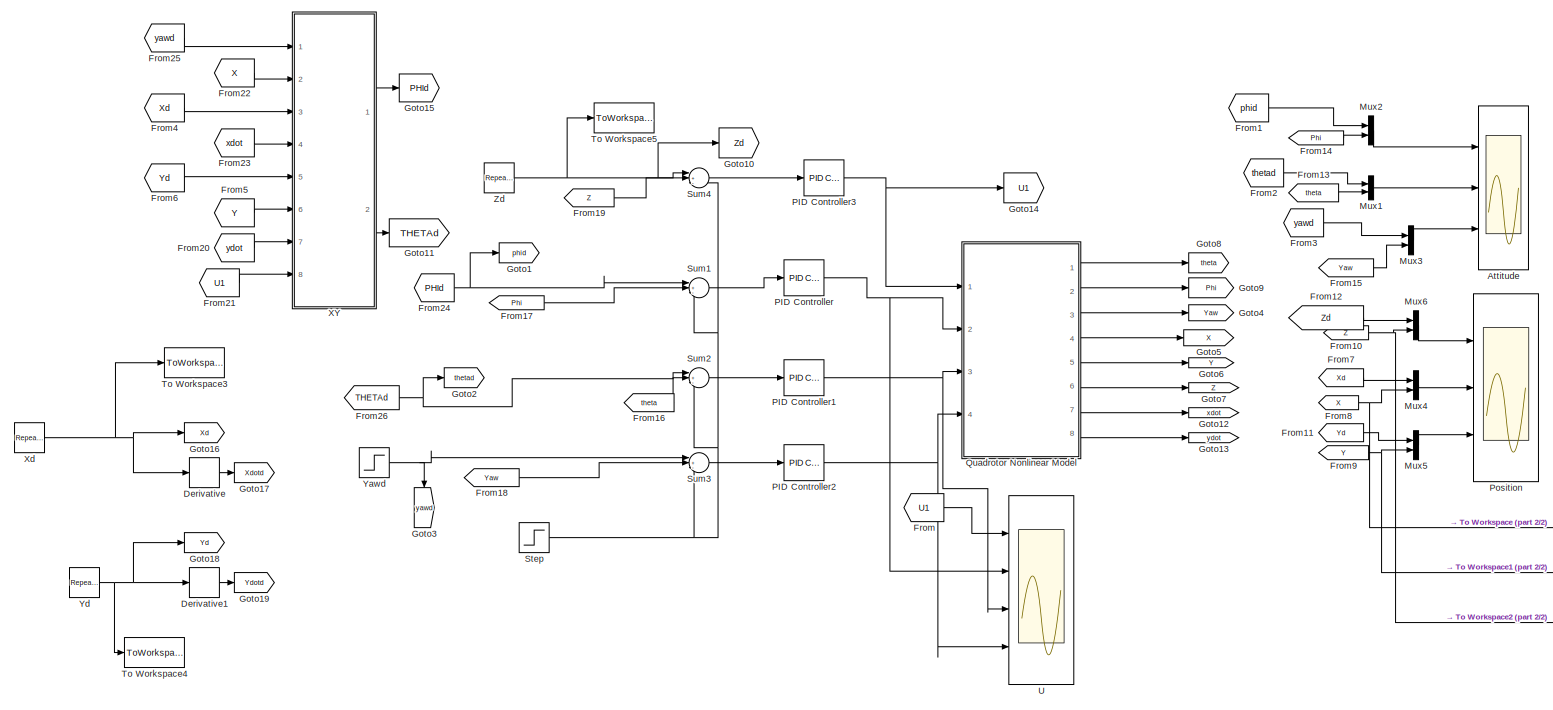
[diagram: root canvas - part 1/2, most of the canvas]
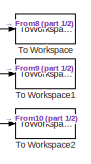
[diagram: root canvas - part 2/2, bottom right region]
MODEL slx_5202ed78c11b
KIND model
CONFIG AbsTol = auto
CONFIG FixedStep = 0.01
CONFIG MaxStep = auto
CONFIG MinStep = auto
CONFIG RelTol = 1e-3
CONFIG SampleTimeConstraint = Unconstrained
CONFIG Solver = ode4
CONFIG SolverMode = Auto
CONFIG SolverName = ode4
CONFIG StartTime = 0.0
CONFIG StopTime = 14
BLOCK [Scope] Attitude
  NumInputPorts = 3
  Ports = [3]
  ScopeSpecificationString = Simulink.scopes.TimeScopeBlockCfg('CurrentConfiguration', extmgr.ConfigurationSet(extmgr.Configuration('Core','General UI',true),extmgr.Configuration('Core','Source UI',true),extmgr.Configuration('Sources','WiredSimulink',true),extmgr.Configuration('Visuals','Time Domain',true,'SerializedDisplays',{struct('MinYLimReal','-1.9635','MaxYLimReal','1.9635','YLabelReal','','MinYLimMag','0.00000','MaxYLi...<+2755ch>
BLOCK [Derivative] Derivative
BLOCK [Derivative] Derivative1
BLOCK [From] From
  GotoTag = U1
BLOCK [From] From1
  GotoTag = phid
BLOCK [From] From10
  GotoTag = Z
BLOCK [From] From11
  GotoTag = Yd
BLOCK [From] From12
  GotoTag = Zd
BLOCK [From] From13
  GotoTag = theta
BLOCK [From] From14
  GotoTag = Phi
BLOCK [From] From15
  GotoTag = Yaw
BLOCK [From] From16
  GotoTag = theta
BLOCK [From] From17
  GotoTag = Phi
BLOCK [From] From18
  GotoTag = Yaw
BLOCK [From] From19
  GotoTag = Z
BLOCK [From] From2
  GotoTag = thetad
BLOCK [From] From20
  GotoTag = ydot
BLOCK [From] From21
  GotoTag = U1
BLOCK [From] From22
  GotoTag = X
BLOCK [From] From23
  GotoTag = xdot
BLOCK [From] From24
  GotoTag = PHId
  TagVisibility = global
BLOCK [From] From25
  GotoTag = yawd
BLOCK [From] From26
  GotoTag = THETAd
  TagVisibility = global
BLOCK [From] From3
  GotoTag = yawd
BLOCK [From] From4
  GotoTag = Xd
BLOCK [From] From5
  GotoTag = Y
BLOCK [From] From6
  GotoTag = Yd
BLOCK [From] From7
  GotoTag = Xd
BLOCK [From] From8
  GotoTag = X
BLOCK [From] From9
  GotoTag = Y
BLOCK [Goto] Goto1
  GotoTag = phid
BLOCK [Goto] Goto10
  GotoTag = Zd
BLOCK [Goto] Goto11
  GotoTag = THETAd
  TagVisibility = global
BLOCK [Goto] Goto12
  GotoTag = xdot
BLOCK [Goto] Goto13
  GotoTag = ydot
BLOCK [Goto] Goto14
  GotoTag = U1
BLOCK [Goto] Goto15
  GotoTag = PHId
  TagVisibility = global
BLOCK [Goto] Goto16
  GotoTag = Xd
BLOCK [Goto] Goto17
  GotoTag = Xdotd
BLOCK [Goto] Goto18
  GotoTag = Yd
BLOCK [Goto] Goto19
  GotoTag = Ydotd
BLOCK [Goto] Goto2
  GotoTag = thetad
BLOCK [Goto] Goto3
  GotoTag = yawd
BLOCK [Goto] Goto4
  GotoTag = Yaw
BLOCK [Goto] Goto5
  GotoTag = X
BLOCK [Goto] Goto6
  GotoTag = Y
BLOCK [Goto] Goto7
  GotoTag = Z
BLOCK [Goto] Goto8
  GotoTag = theta
BLOCK [Goto] Goto9
  GotoTag = Phi
BLOCK [Mux] Mux1
  DisplayOption = bar
  Inputs = 2
  Ports = [2, 1]
BLOCK [Mux] Mux2
  DisplayOption = bar
  Inputs = 2
  Ports = [2, 1]
BLOCK [Mux] Mux3
  DisplayOption = bar
  Inputs = 2
  Ports = [2, 1]
BLOCK [Mux] Mux4
  DisplayOption = bar
  Inputs = 2
  Ports = [2, 1]
BLOCK [Mux] Mux5
  DisplayOption = bar
  Inputs = 2
  Ports = [2, 1]
BLOCK [Mux] Mux6
  DisplayOption = bar
  Inputs = 2
  Ports = [2, 1]
BLOCK [Reference] PID Controller  REF=simulink/Continuous/PID Controller
  Ports = [1, 1]
  SourceBlock = simulink/Continuous/PID Controller
  SourceType = PID 1dof
BLOCK [Reference] PID Controller1  REF=simulink/Continuous/PID Controller
  Ports = [1, 1]
  SourceBlock = simulink/Continuous/PID Controller
  SourceType = PID 1dof
BLOCK [Reference] PID Controller2  REF=simulink/Continuous/PID Controller
  Ports = [1, 1]
  SourceBlock = simulink/Continuous/PID Controller
  SourceType = PID 1dof
BLOCK [Reference] PID Controller3  REF=simulink/Continuous/PID Controller
  Ports = [1, 1]
  SourceBlock = simulink/Continuous/PID Controller
  SourceType = PID 1dof
BLOCK [Scope] Position
  NumInputPorts = 3
  Ports = [3]
  ScopeSpecificationString = Simulink.scopes.TimeScopeBlockCfg('CurrentConfiguration', extmgr.ConfigurationSet(extmgr.Configuration('Core','General UI',true),extmgr.Configuration('Core','Source UI',true),extmgr.Configuration('Sources','WiredSimulink',true,'DataLoggingVariableName','ScopeData1'),extmgr.Configuration('Visuals','Time Domain',true,'SerializedDisplays',{struct('MinYLimReal','0.30038','MaxYLimReal','6.25834','YLabe...<+2876ch>
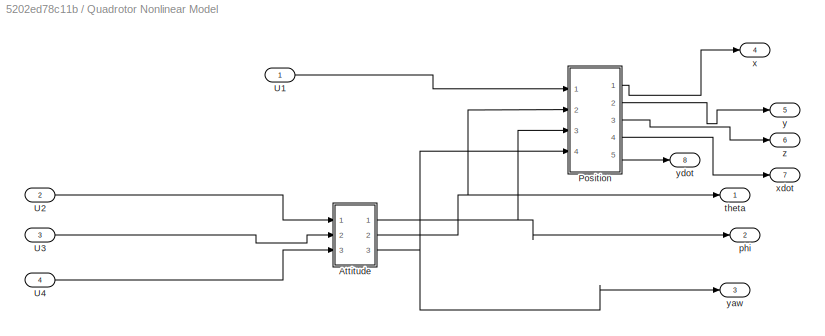
BLOCK [SubSystem] Quadrotor Nonlinear Model
  Ports = [4, 8]
  RequestExecContextInheritance = off
  Variant = off
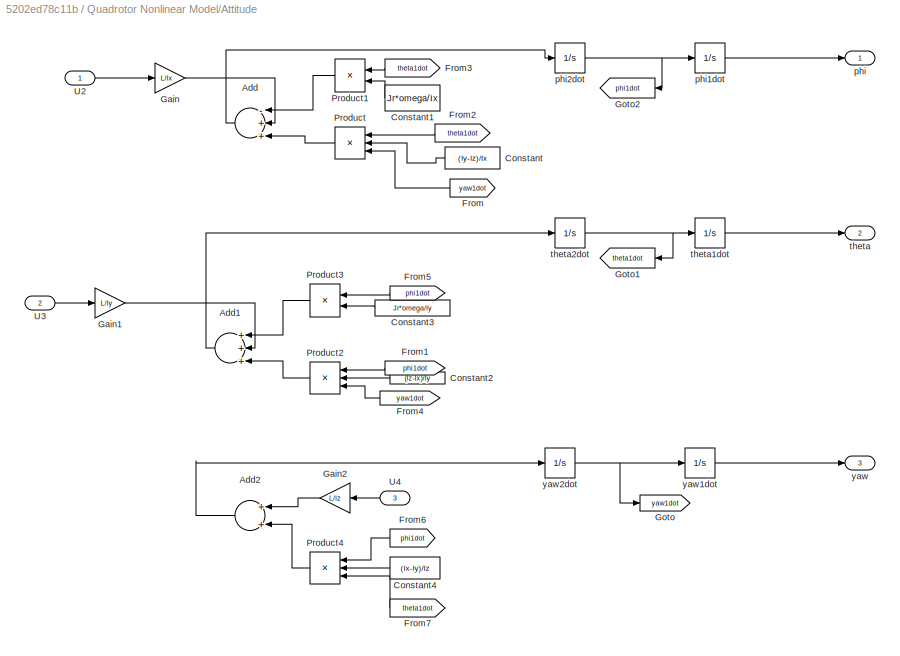
BLOCK [SubSystem] Quadrotor Nonlinear Model/Attitude 
  Ports = [3, 3]
  RequestExecContextInheritance = off
  Variant = off
BLOCK [Sum] Quadrotor Nonlinear Model/Attitude /Add
  InputSameDT = off
  Inputs = -++
  OutDataTypeStr = Inherit: Inherit via internal rule
  Ports = [3, 1]
  SaturateOnIntegerOverflow = off
BLOCK [Sum] Quadrotor Nonlinear Model/Attitude /Add1
  InputSameDT = off
  Inputs = +++
  OutDataTypeStr = Inherit: Inherit via internal rule
  Ports = [3, 1]
  SaturateOnIntegerOverflow = off
BLOCK [Sum] Quadrotor Nonlinear Model/Attitude /Add2
  InputSameDT = off
  OutDataTypeStr = Inherit: Inherit via internal rule
  Ports = [2, 1]
  SaturateOnIntegerOverflow = off
BLOCK [Constant] Quadrotor Nonlinear Model/Attitude /Constant
  Value = (Iy-Iz)/Ix
BLOCK [Constant] Quadrotor Nonlinear Model/Attitude /Constant1
  Value = Jr*omega/Ix
BLOCK [Constant] Quadrotor Nonlinear Model/Attitude /Constant2
  Value = (Iz-Ix)/Iy
BLOCK [Constant] Quadrotor Nonlinear Model/Attitude /Constant3
  Value = Jr*omega/Iy
BLOCK [Constant] Quadrotor Nonlinear Model/Attitude /Constant4
  Value = (Ix-Iy)/Iz
BLOCK [From] Quadrotor Nonlinear Model/Attitude /From
  GotoTag = yaw1dot
BLOCK [From] Quadrotor Nonlinear Model/Attitude /From1
  GotoTag = phi1dot
BLOCK [From] Quadrotor Nonlinear Model/Attitude /From2
  GotoTag = theta1dot
BLOCK [From] Quadrotor Nonlinear Model/Attitude /From3
  GotoTag = theta1dot
BLOCK [From] Quadrotor Nonlinear Model/Attitude /From4
  GotoTag = yaw1dot
BLOCK [From] Quadrotor Nonlinear Model/Attitude /From5
  GotoTag = phi1dot
BLOCK [From] Quadrotor Nonlinear Model/Attitude /From6
  GotoTag = phi1dot
BLOCK [From] Quadrotor Nonlinear Model/Attitude /From7
  GotoTag = theta1dot
BLOCK [Gain] Quadrotor Nonlinear Model/Attitude /Gain
  Gain = L/Ix
  OutDataTypeStr = Inherit: Inherit via internal rule
  ParamDataTypeStr = Inherit: Inherit via internal rule
  SaturateOnIntegerOverflow = off
BLOCK [Gain] Quadrotor Nonlinear Model/Attitude /Gain1
  Gain = L/Iy
  OutDataTypeStr = Inherit: Inherit via internal rule
  ParamDataTypeStr = Inherit: Inherit via internal rule
  SaturateOnIntegerOverflow = off
BLOCK [Gain] Quadrotor Nonlinear Model/Attitude /Gain2
  Gain = L/Iz
  OutDataTypeStr = Inherit: Inherit via internal rule
  ParamDataTypeStr = Inherit: Inherit via internal rule
  SaturateOnIntegerOverflow = off
BLOCK [Goto] Quadrotor Nonlinear Model/Attitude /Goto
  GotoTag = yaw1dot
BLOCK [Goto] Quadrotor Nonlinear Model/Attitude /Goto1
  GotoTag = theta1dot
BLOCK [Goto] Quadrotor Nonlinear Model/Attitude /Goto2
  GotoTag = phi1dot
BLOCK [Product] Quadrotor Nonlinear Model/Attitude /Product
  InputSameDT = off
  Inputs = 3
  OutDataTypeStr = Inherit: Inherit via internal rule
  Ports = [3, 1]
  RndMeth = Floor
  SaturateOnIntegerOverflow = off
BLOCK [Product] Quadrotor Nonlinear Model/Attitude /Product1
  InputSameDT = off
  OutDataTypeStr = Inherit: Inherit via internal rule
  Ports = [2, 1]
  RndMeth = Floor
  SaturateOnIntegerOverflow = off
BLOCK [Product] Quadrotor Nonlinear Model/Attitude /Product2
  InputSameDT = off
  Inputs = 3
  OutDataTypeStr = Inherit: Inherit via internal rule
  Ports = [3, 1]
  RndMeth = Floor
  SaturateOnIntegerOverflow = off
BLOCK [Product] Quadrotor Nonlinear Model/Attitude /Product3
  InputSameDT = off
  OutDataTypeStr = Inherit: Inherit via internal rule
  Ports = [2, 1]
  RndMeth = Floor
  SaturateOnIntegerOverflow = off
BLOCK [Product] Quadrotor Nonlinear Model/Attitude /Product4
  InputSameDT = off
  Inputs = 3
  OutDataTypeStr = Inherit: Inherit via internal rule
  Ports = [3, 1]
  RndMeth = Floor
  SaturateOnIntegerOverflow = off
BLOCK [Inport] Quadrotor Nonlinear Model/Attitude /U2
  IconDisplay = Port number
BLOCK [Inport] Quadrotor Nonlinear Model/Attitude /U3
  IconDisplay = Port number
  Port = 2
BLOCK [Inport] Quadrotor Nonlinear Model/Attitude /U4
  IconDisplay = Port number
  Port = 3
BLOCK [Outport] Quadrotor Nonlinear Model/Attitude /phi 
  IconDisplay = Port number
BLOCK [Integrator] Quadrotor Nonlinear Model/Attitude /phi1dot
  Ports = [1, 1]
BLOCK [Integrator] Quadrotor Nonlinear Model/Attitude /phi2dot
  Ports = [1, 1]
BLOCK [Outport] Quadrotor Nonlinear Model/Attitude /theta
  IconDisplay = Port number
  Port = 2
BLOCK [Integrator] Quadrotor Nonlinear Model/Attitude /theta1dot
  Ports = [1, 1]
BLOCK [Integrator] Quadrotor Nonlinear Model/Attitude /theta2dot
  Ports = [1, 1]
BLOCK [Outport] Quadrotor Nonlinear Model/Attitude /yaw
  IconDisplay = Port number
  Port = 3
BLOCK [Integrator] Quadrotor Nonlinear Model/Attitude /yaw1dot
  Ports = [1, 1]
BLOCK [Integrator] Quadrotor Nonlinear Model/Attitude /yaw2dot
  Ports = [1, 1]
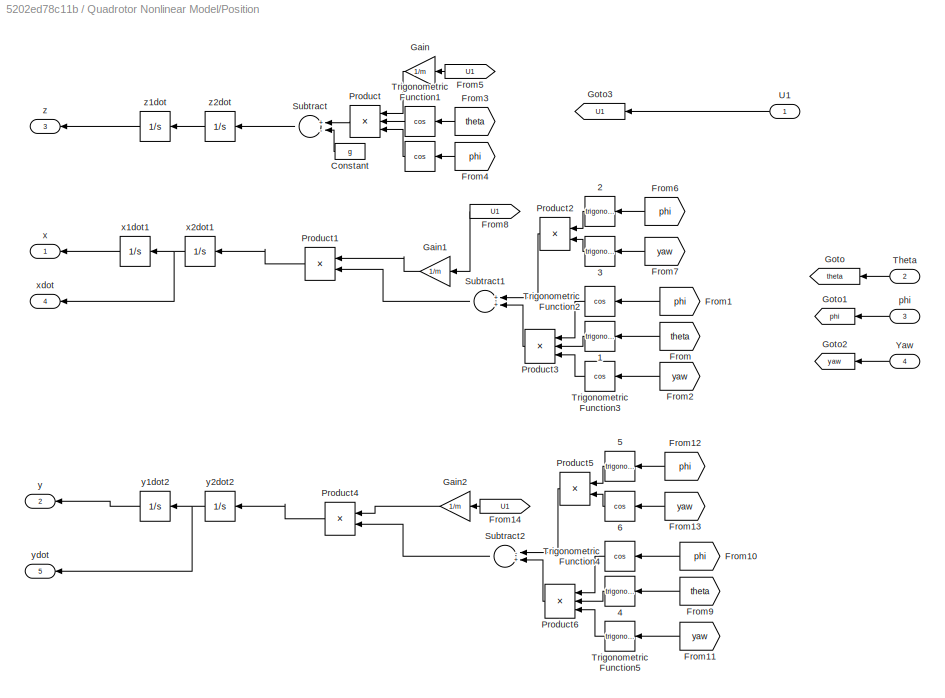
BLOCK [SubSystem] Quadrotor Nonlinear Model/Position
  Ports = [4, 5]
  RequestExecContextInheritance = off
  Variant = off
BLOCK [Trigonometry] Quadrotor Nonlinear Model/Position/ 
  Operator = cos
  Ports = [1, 1]
BLOCK [Trigonometry] Quadrotor Nonlinear Model/Position/ 1
  Ports = [1, 1]
BLOCK [Trigonometry] Quadrotor Nonlinear Model/Position/ 2
  Ports = [1, 1]
BLOCK [Trigonometry] Quadrotor Nonlinear Model/Position/ 3
  Ports = [1, 1]
BLOCK [Trigonometry] Quadrotor Nonlinear Model/Position/ 4
  Ports = [1, 1]
BLOCK [Trigonometry] Quadrotor Nonlinear Model/Position/ 5
  Ports = [1, 1]
BLOCK [Trigonometry] Quadrotor Nonlinear Model/Position/ 6
  Operator = cos
  Ports = [1, 1]
BLOCK [Constant] Quadrotor Nonlinear Model/Position/Constant
  Value = g
BLOCK [From] Quadrotor Nonlinear Model/Position/From
  GotoTag = theta
BLOCK [From] Quadrotor Nonlinear Model/Position/From1
  GotoTag = phi
BLOCK [From] Quadrotor Nonlinear Model/Position/From10
  GotoTag = phi
BLOCK [From] Quadrotor Nonlinear Model/Position/From11
  GotoTag = yaw
BLOCK [From] Quadrotor Nonlinear Model/Position/From12
  GotoTag = phi
BLOCK [From] Quadrotor Nonlinear Model/Position/From13
  GotoTag = yaw
BLOCK [From] Quadrotor Nonlinear Model/Position/From14
  GotoTag = U1
BLOCK [From] Quadrotor Nonlinear Model/Position/From2
  GotoTag = yaw
BLOCK [From] Quadrotor Nonlinear Model/Position/From3
  GotoTag = theta
BLOCK [From] Quadrotor Nonlinear Model/Position/From4
  GotoTag = phi
BLOCK [From] Quadrotor Nonlinear Model/Position/From5
  GotoTag = U1
BLOCK [From] Quadrotor Nonlinear Model/Position/From6
  GotoTag = phi
BLOCK [From] Quadrotor Nonlinear Model/Position/From7
  GotoTag = yaw
BLOCK [From] Quadrotor Nonlinear Model/Position/From8
  GotoTag = U1
BLOCK [From] Quadrotor Nonlinear Model/Position/From9
  GotoTag = theta
BLOCK [Gain] Quadrotor Nonlinear Model/Position/Gain
  Gain = 1/m
  OutDataTypeStr = Inherit: Inherit via internal rule
  ParamDataTypeStr = Inherit: Inherit via internal rule
  SaturateOnIntegerOverflow = off
BLOCK [Gain] Quadrotor Nonlinear Model/Position/Gain1
  Gain = 1/m
  OutDataTypeStr = Inherit: Inherit via internal rule
  ParamDataTypeStr = Inherit: Inherit via internal rule
  SaturateOnIntegerOverflow = off
BLOCK [Gain] Quadrotor Nonlinear Model/Position/Gain2
  Gain = 1/m
  OutDataTypeStr = Inherit: Inherit via internal rule
  ParamDataTypeStr = Inherit: Inherit via internal rule
  SaturateOnIntegerOverflow = off
BLOCK [Goto] Quadrotor Nonlinear Model/Position/Goto
  GotoTag = theta
BLOCK [Goto] Quadrotor Nonlinear Model/Position/Goto1
  GotoTag = phi
BLOCK [Goto] Quadrotor Nonlinear Model/Position/Goto2
  GotoTag = yaw
BLOCK [Goto] Quadrotor Nonlinear Model/Position/Goto3
  GotoTag = U1
BLOCK [Product] Quadrotor Nonlinear Model/Position/Product
  InputSameDT = off
  Inputs = 3
  OutDataTypeStr = Inherit: Inherit via internal rule
  Ports = [3, 1]
  RndMeth = Floor
  SaturateOnIntegerOverflow = off
BLOCK [Product] Quadrotor Nonlinear Model/Position/Product1
  InputSameDT = off
  OutDataTypeStr = Inherit: Inherit via internal rule
  Ports = [2, 1]
  RndMeth = Floor
  SaturateOnIntegerOverflow = off
BLOCK [Product] Quadrotor Nonlinear Model/Position/Product2
  InputSameDT = off
  OutDataTypeStr = Inherit: Inherit via internal rule
  Ports = [2, 1]
  RndMeth = Floor
  SaturateOnIntegerOverflow = off
BLOCK [Product] Quadrotor Nonlinear Model/Position/Product3
  InputSameDT = off
  Inputs = 3
  OutDataTypeStr = Inherit: Inherit via internal rule
  Ports = [3, 1]
  RndMeth = Floor
  SaturateOnIntegerOverflow = off
BLOCK [Product] Quadrotor Nonlinear Model/Position/Product4
  InputSameDT = off
  OutDataTypeStr = Inherit: Inherit via internal rule
  Ports = [2, 1]
  RndMeth = Floor
  SaturateOnIntegerOverflow = off
BLOCK [Product] Quadrotor Nonlinear Model/Position/Product5
  InputSameDT = off
  OutDataTypeStr = Inherit: Inherit via internal rule
  Ports = [2, 1]
  RndMeth = Floor
  SaturateOnIntegerOverflow = off
BLOCK [Product] Quadrotor Nonlinear Model/Position/Product6
  InputSameDT = off
  Inputs = 3
  OutDataTypeStr = Inherit: Inherit via internal rule
  Ports = [3, 1]
  RndMeth = Floor
  SaturateOnIntegerOverflow = off
BLOCK [Sum] Quadrotor Nonlinear Model/Position/Subtract
  InputSameDT = off
  Inputs = +-
  OutDataTypeStr = Inherit: Inherit via internal rule
  Ports = [2, 1]
  SaturateOnIntegerOverflow = off
BLOCK [Sum] Quadrotor Nonlinear Model/Position/Subtract1
  InputSameDT = off
  OutDataTypeStr = Inherit: Inherit via internal rule
  Ports = [2, 1]
  SaturateOnIntegerOverflow = off
BLOCK [Sum] Quadrotor Nonlinear Model/Position/Subtract2
  InputSameDT = off
  Inputs = -+
  OutDataTypeStr = Inherit: Inherit via internal rule
  Ports = [2, 1]
  SaturateOnIntegerOverflow = off
BLOCK [Inport] Quadrotor Nonlinear Model/Position/Theta
  IconDisplay = Port number
  Port = 2
BLOCK [Trigonometry] Quadrotor Nonlinear Model/Position/Trigonometric Function1
  Operator = cos
  Ports = [1, 1]
BLOCK [Trigonometry] Quadrotor Nonlinear Model/Position/Trigonometric Function2
  Operator = cos
  Ports = [1, 1]
BLOCK [Trigonometry] Quadrotor Nonlinear Model/Position/Trigonometric Function3
  Operator = cos
  Ports = [1, 1]
BLOCK [Trigonometry] Quadrotor Nonlinear Model/Position/Trigonometric Function4
  Operator = cos
  Ports = [1, 1]
BLOCK [Trigonometry] Quadrotor Nonlinear Model/Position/Trigonometric Function5
  Ports = [1, 1]
BLOCK [Inport] Quadrotor Nonlinear Model/Position/U1
  IconDisplay = Port number
BLOCK [Inport] Quadrotor Nonlinear Model/Position/Yaw
  IconDisplay = Port number
  Port = 4
BLOCK [Inport] Quadrotor Nonlinear Model/Position/phi
  IconDisplay = Port number
  Port = 3
BLOCK [Outport] Quadrotor Nonlinear Model/Position/x
  IconDisplay = Port number
BLOCK [Integrator] Quadrotor Nonlinear Model/Position/x1dot1
  InitialCondition = 2
  Ports = [1, 1]
BLOCK [Integrator] Quadrotor Nonlinear Model/Position/x2dot1
  Ports = [1, 1]
BLOCK [Outport] Quadrotor Nonlinear Model/Position/xdot
  IconDisplay = Port number
  Port = 4
BLOCK [Outport] Quadrotor Nonlinear Model/Position/y
  IconDisplay = Port number
  Port = 2
BLOCK [Integrator] Quadrotor Nonlinear Model/Position/y1dot2
  InitialCondition = 2
  Ports = [1, 1]
BLOCK [Integrator] Quadrotor Nonlinear Model/Position/y2dot2
  Ports = [1, 1]
BLOCK [Outport] Quadrotor Nonlinear Model/Position/ydot
  IconDisplay = Port number
  Port = 5
BLOCK [Outport] Quadrotor Nonlinear Model/Position/z
  IconDisplay = Port number
  Port = 3
BLOCK [Integrator] Quadrotor Nonlinear Model/Position/z1dot
  InitialCondition = 1
  Ports = [1, 1]
BLOCK [Integrator] Quadrotor Nonlinear Model/Position/z2dot
  Ports = [1, 1]
BLOCK [Inport] Quadrotor Nonlinear Model/U1
  IconDisplay = Port number
BLOCK [Inport] Quadrotor Nonlinear Model/U2
  IconDisplay = Port number
  Port = 2
BLOCK [Inport] Quadrotor Nonlinear Model/U3
  IconDisplay = Port number
  Port = 3
BLOCK [Inport] Quadrotor Nonlinear Model/U4
  IconDisplay = Port number
  Port = 4
BLOCK [Outport] Quadrotor Nonlinear Model/phi
  IconDisplay = Port number
  Port = 2
BLOCK [Outport] Quadrotor Nonlinear Model/theta
  IconDisplay = Port number
BLOCK [Outport] Quadrotor Nonlinear Model/x
  IconDisplay = Port number
  Port = 4
BLOCK [Outport] Quadrotor Nonlinear Model/xdot
  IconDisplay = Port number
  Port = 7
BLOCK [Outport] Quadrotor Nonlinear Model/y
  IconDisplay = Port number
  Port = 5
BLOCK [Outport] Quadrotor Nonlinear Model/yaw
  IconDisplay = Port number
  Port = 3
BLOCK [Outport] Quadrotor Nonlinear Model/ydot
  IconDisplay = Port number
  Port = 8
BLOCK [Outport] Quadrotor Nonlinear Model/z
  IconDisplay = Port number
  Port = 6
BLOCK [Step] Step
  After = Disturbance
  SampleTime = 0
  Time = 8
BLOCK [Sum] Sum1
  IconShape = round
  InputSameDT = off
  Inputs = |+--
  OutDataTypeStr = Inherit: Inherit via internal rule
  Ports = [3, 1]
  SaturateOnIntegerOverflow = off
BLOCK [Sum] Sum2
  IconShape = round
  InputSameDT = off
  Inputs = |+--
  OutDataTypeStr = Inherit: Inherit via internal rule
  Ports = [3, 1]
  SaturateOnIntegerOverflow = off
BLOCK [Sum] Sum3
  IconShape = round
  InputSameDT = off
  Inputs = |+--
  OutDataTypeStr = Inherit: Inherit via internal rule
  Ports = [3, 1]
  SaturateOnIntegerOverflow = off
BLOCK [Sum] Sum4
  IconShape = round
  InputSameDT = off
  Inputs = |+--
  OutDataTypeStr = Inherit: Inherit via internal rule
  Ports = [3, 1]
  SaturateOnIntegerOverflow = off
BLOCK [ToWorkspace] To Workspace
  MaxDataPoints = inf
  Ports = [1]
  SampleTime = -1
  Save2DSignal = 2-D array (concatenate along first dimension)
  VariableName = X
BLOCK [ToWorkspace] To Workspace1
  MaxDataPoints = inf
  Ports = [1]
  SampleTime = -1
  Save2DSignal = 2-D array (concatenate along first dimension)
  VariableName = Y
BLOCK [ToWorkspace] To Workspace2
  MaxDataPoints = inf
  Ports = [1]
  SampleTime = -1
  Save2DSignal = 2-D array (concatenate along first dimension)
  VariableName = Z
BLOCK [ToWorkspace] To Workspace3
  MaxDataPoints = inf
  Ports = [1]
  SampleTime = -1
  Save2DSignal = 2-D array (concatenate along first dimension)
  VariableName = Xd
BLOCK [ToWorkspace] To Workspace4
  MaxDataPoints = inf
  Ports = [1]
  SampleTime = -1
  Save2DSignal = 2-D array (concatenate along first dimension)
  VariableName = Yd
BLOCK [ToWorkspace] To Workspace5
  MaxDataPoints = inf
  Ports = [1]
  SampleTime = -1
  Save2DSignal = 2-D array (concatenate along first dimension)
  VariableName = Zd
BLOCK [Scope] U 
  NumInputPorts = 4
  Ports = [4]
  ScopeSpecificationString = Simulink.scopes.TimeScopeBlockCfg('CurrentConfiguration', extmgr.ConfigurationSet(extmgr.Configuration('Core','General UI',true),extmgr.Configuration('Core','Source UI',true),extmgr.Configuration('Sources','WiredSimulink',true,'DataLoggingVariableName','ScopeData2'),extmgr.Configuration('Visuals','Time Domain',true,'SerializedDisplays',{struct('MinYLimReal','-21.51638','MaxYLimReal','15.58631','YL...<+3385ch>
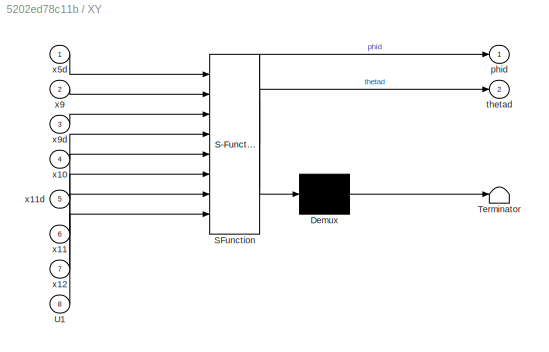
BLOCK [SubSystem] XY
  ErrorFcn = Stateflow.Translate.translate
  PermitHierarchicalResolution = ExplicitOnly
  Ports = [8, 2]
  RequestExecContextInheritance = off
  SFBlockType = MATLAB Function
  TreatAsAtomicUnit = on
  Variant = off
BLOCK [Demux] XY/ Demux 
  Outputs = 1
  Ports = [1, 1]
BLOCK [S-Function] XY/ SFunction 
  EnableBusSupport = on
  FunctionName = sf_sfun
  PortCounts = [8 3]
  Ports = [8, 3]
  SFunctionDeploymentMode = off
  Tag = Stateflow S-Function PIDQUAD_Position 5
BLOCK [Terminator] XY/ Terminator 
BLOCK [Inport] XY/U1
  IconDisplay = Port number
  Port = 8
BLOCK [Outport] XY/phid
  IconDisplay = Port number
BLOCK [Outport] XY/thetad
  IconDisplay = Port number
  Port = 2
BLOCK [Inport] XY/x10
  IconDisplay = Port number
  Port = 4
BLOCK [Inport] XY/x11
  IconDisplay = Port number
  Port = 6
BLOCK [Inport] XY/x11d
  IconDisplay = Port number
  Port = 5
BLOCK [Inport] XY/x12
  IconDisplay = Port number
  Port = 7
BLOCK [Inport] XY/x5d
  IconDisplay = Port number
BLOCK [Inport] XY/x9
  IconDisplay = Port number
  Port = 2
BLOCK [Inport] XY/x9d
  IconDisplay = Port number
  Port = 3
BLOCK [Reference] Xd   REF=simulink/Sources/Repeating
Sequence
Interpolated
  Ports = [0, 1]
  SourceBlock = simulink/Sources/Repeating\nSequence\nInterpolated
  SourceType = Repeating Sequence Interpolated
BLOCK [Step] Yawd
  SampleTime = 0
  Time = 0
BLOCK [Reference] Yd   REF=simulink/Sources/Repeating
Sequence
Interpolated
  Ports = [0, 1]
  SourceBlock = simulink/Sources/Repeating\nSequence\nInterpolated
  SourceType = Repeating Sequence Interpolated
BLOCK [Reference] Zd   REF=simulink/Sources/Repeating
Sequence
Interpolated
  Ports = [0, 1]
  SourceBlock = simulink/Sources/Repeating\nSequence\nInterpolated
  SourceType = Repeating Sequence Interpolated
LINE Derivative1:1 -> Goto19:1
LINE Derivative:1 -> Goto17:1
NET From10:1 -> Mux6:2, To Workspace2:1
LINE From11:1 -> Mux5:1
LINE From12:1 -> Mux6:1
LINE From13:1 -> Mux1:2
LINE From14:1 -> Mux2:2
LINE From15:1 -> Mux3:2
LINE From16:1 -> Sum2:2
LINE From17:1 -> Sum1:2
LINE From18:1 -> Sum3:2
LINE From19:1 -> Sum4:2
LINE From1:1 -> Mux2:1
LINE From20:1 -> XY:7
LINE From21:1 -> XY:8
LINE From22:1 -> XY:2
LINE From23:1 -> XY:4
NET From24:1 -> Goto1:1, Sum1:1
LINE From25:1 -> XY:1
NET From26:1 -> Goto2:1, Sum2:1
LINE From2:1 -> Mux1:1
LINE From3:1 -> Mux3:1
LINE From4:1 -> XY:3
LINE From5:1 -> XY:6
LINE From6:1 -> XY:5
LINE From7:1 -> Mux4:1
NET From8:1 -> Mux4:2, To Workspace:1
NET From9:1 -> Mux5:2, To Workspace1:1
LINE From:1 -> U :1
LINE Mux1:1 -> Attitude:2
LINE Mux2:1 -> Attitude:1
LINE Mux3:1 -> Attitude:3
LINE Mux4:1 -> Position:2
LINE Mux5:1 -> Position:3
LINE Mux6:1 -> Position:1
NET PID Controller1:1 -> Quadrotor Nonlinear Model:3, U :3
NET PID Controller2:1 -> Quadrotor Nonlinear Model:4, U :4
NET PID Controller3:1 -> Goto14:1, Quadrotor Nonlinear Model:1
NET PID Controller:1 -> Quadrotor Nonlinear Model:2, U :2
LINE Quadrotor Nonlinear Model/Attitude /Add1:1 -> Quadrotor Nonlinear Model/Attitude /theta2dot:1
LINE Quadrotor Nonlinear Model/Attitude /Add2:1 -> Quadrotor Nonlinear Model/Attitude /yaw2dot:1
LINE Quadrotor Nonlinear Model/Attitude /Add:1 -> Quadrotor Nonlinear Model/Attitude /phi2dot:1
LINE Quadrotor Nonlinear Model/Attitude /Constant1:1 -> Quadrotor Nonlinear Model/Attitude /Product1:2
LINE Quadrotor Nonlinear Model/Attitude /Constant2:1 -> Quadrotor Nonlinear Model/Attitude /Product2:2
LINE Quadrotor Nonlinear Model/Attitude /Constant3:1 -> Quadrotor Nonlinear Model/Attitude /Product3:2
LINE Quadrotor Nonlinear Model/Attitude /Constant4:1 -> Quadrotor Nonlinear Model/Attitude /Product4:2
LINE Quadrotor Nonlinear Model/Attitude /Constant:1 -> Quadrotor Nonlinear Model/Attitude /Product:2
LINE Quadrotor Nonlinear Model/Attitude /From1:1 -> Quadrotor Nonlinear Model/Attitude /Product2:1
LINE Quadrotor Nonlinear Model/Attitude /From2:1 -> Quadrotor Nonlinear Model/Attitude /Product:1
LINE Quadrotor Nonlinear Model/Attitude /From3:1 -> Quadrotor Nonlinear Model/Attitude /Product1:1
LINE Quadrotor Nonlinear Model/Attitude /From4:1 -> Quadrotor Nonlinear Model/Attitude /Product2:3
LINE Quadrotor Nonlinear Model/Attitude /From5:1 -> Quadrotor Nonlinear Model/Attitude /Product3:1
LINE Quadrotor Nonlinear Model/Attitude /From6:1 -> Quadrotor Nonlinear Model/Attitude /Product4:1
LINE Quadrotor Nonlinear Model/Attitude /From7:1 -> Quadrotor Nonlinear Model/Attitude /Product4:3
LINE Quadrotor Nonlinear Model/Attitude /From:1 -> Quadrotor Nonlinear Model/Attitude /Product:3
LINE Quadrotor Nonlinear Model/Attitude /Gain1:1 -> Quadrotor Nonlinear Model/Attitude /Add1:2
LINE Quadrotor Nonlinear Model/Attitude /Gain2:1 -> Quadrotor Nonlinear Model/Attitude /Add2:1
LINE Quadrotor Nonlinear Model/Attitude /Gain:1 -> Quadrotor Nonlinear Model/Attitude /Add:2
LINE Quadrotor Nonlinear Model/Attitude /Product1:1 -> Quadrotor Nonlinear Model/Attitude /Add:1
LINE Quadrotor Nonlinear Model/Attitude /Product2:1 -> Quadrotor Nonlinear Model/Attitude /Add1:3
LINE Quadrotor Nonlinear Model/Attitude /Product3:1 -> Quadrotor Nonlinear Model/Attitude /Add1:1
LINE Quadrotor Nonlinear Model/Attitude /Product4:1 -> Quadrotor Nonlinear Model/Attitude /Add2:2
LINE Quadrotor Nonlinear Model/Attitude /Product:1 -> Quadrotor Nonlinear Model/Attitude /Add:3
LINE Quadrotor Nonlinear Model/Attitude /U2:1 -> Quadrotor Nonlinear Model/Attitude /Gain:1
LINE Quadrotor Nonlinear Model/Attitude /U3:1 -> Quadrotor Nonlinear Model/Attitude /Gain1:1
LINE Quadrotor Nonlinear Model/Attitude /U4:1 -> Quadrotor Nonlinear Model/Attitude /Gain2:1
LINE Quadrotor Nonlinear Model/Attitude /phi1dot:1 -> Quadrotor Nonlinear Model/Attitude /phi :1
NET Quadrotor Nonlinear Model/Attitude /phi2dot:1 -> Quadrotor Nonlinear Model/Attitude /Goto2:1, Quadrotor Nonlinear Model/Attitude /phi1dot:1
LINE Quadrotor Nonlinear Model/Attitude /theta1dot:1 -> Quadrotor Nonlinear Model/Attitude /theta:1
NET Quadrotor Nonlinear Model/Attitude /theta2dot:1 -> Quadrotor Nonlinear Model/Attitude /Goto1:1, Quadrotor Nonlinear Model/Attitude /theta1dot:1
LINE Quadrotor Nonlinear Model/Attitude /yaw1dot:1 -> Quadrotor Nonlinear Model/Attitude /yaw:1
NET Quadrotor Nonlinear Model/Attitude /yaw2dot:1 -> Quadrotor Nonlinear Model/Attitude /Goto:1, Quadrotor Nonlinear Model/Attitude /yaw1dot:1
NET Quadrotor Nonlinear Model/Attitude :1 -> Quadrotor Nonlinear Model/Position:3, Quadrotor Nonlinear Model/phi:1
NET Quadrotor Nonlinear Model/Attitude :2 -> Quadrotor Nonlinear Model/Position:2, Quadrotor Nonlinear Model/theta:1
NET Quadrotor Nonlinear Model/Attitude :3 -> Quadrotor Nonlinear Model/Position:4, Quadrotor Nonlinear Model/yaw:1
LINE Quadrotor Nonlinear Model/Position/ 1:1 -> Quadrotor Nonlinear Model/Position/Product3:2
LINE Quadrotor Nonlinear Model/Position/ 2:1 -> Quadrotor Nonlinear Model/Position/Product2:1
LINE Quadrotor Nonlinear Model/Position/ 3:1 -> Quadrotor Nonlinear Model/Position/Product2:2
LINE Quadrotor Nonlinear Model/Position/ 4:1 -> Quadrotor Nonlinear Model/Position/Product6:2
LINE Quadrotor Nonlinear Model/Position/ 5:1 -> Quadrotor Nonlinear Model/Position/Product5:1
LINE Quadrotor Nonlinear Model/Position/ 6:1 -> Quadrotor Nonlinear Model/Position/Product5:2
LINE Quadrotor Nonlinear Model/Position/ :1 -> Quadrotor Nonlinear Model/Position/Product:3
LINE Quadrotor Nonlinear Model/Position/Constant:1 -> Quadrotor Nonlinear Model/Position/Subtract:2
LINE Quadrotor Nonlinear Model/Position/From10:1 -> Quadrotor Nonlinear Model/Position/Trigonometric Function4:1
LINE Quadrotor Nonlinear Model/Position/From11:1 -> Quadrotor Nonlinear Model/Position/Trigonometric Function5:1
LINE Quadrotor Nonlinear Model/Position/From12:1 -> Quadrotor Nonlinear Model/Position/ 5:1
LINE Quadrotor Nonlinear Model/Position/From13:1 -> Quadrotor Nonlinear Model/Position/ 6:1
LINE Quadrotor Nonlinear Model/Position/From14:1 -> Quadrotor Nonlinear Model/Position/Gain2:1
LINE Quadrotor Nonlinear Model/Position/From1:1 -> Quadrotor Nonlinear Model/Position/Trigonometric Function2:1
LINE Quadrotor Nonlinear Model/Position/From2:1 -> Quadrotor Nonlinear Model/Position/Trigonometric Function3:1
LINE Quadrotor Nonlinear Model/Position/From3:1 -> Quadrotor Nonlinear Model/Position/Trigonometric Function1:1
LINE Quadrotor Nonlinear Model/Position/From4:1 -> Quadrotor Nonlinear Model/Position/ :1
LINE Quadrotor Nonlinear Model/Position/From5:1 -> Quadrotor Nonlinear Model/Position/Gain:1
LINE Quadrotor Nonlinear Model/Position/From6:1 -> Quadrotor Nonlinear Model/Position/ 2:1
LINE Quadrotor Nonlinear Model/Position/From7:1 -> Quadrotor Nonlinear Model/Position/ 3:1
LINE Quadrotor Nonlinear Model/Position/From8:1 -> Quadrotor Nonlinear Model/Position/Gain1:1
LINE Quadrotor Nonlinear Model/Position/From9:1 -> Quadrotor Nonlinear Model/Position/ 4:1
LINE Quadrotor Nonlinear Model/Position/From:1 -> Quadrotor Nonlinear Model/Position/ 1:1
LINE Quadrotor Nonlinear Model/Position/Gain1:1 -> Quadrotor Nonlinear Model/Position/Product1:1
LINE Quadrotor Nonlinear Model/Position/Gain2:1 -> Quadrotor Nonlinear Model/Position/Product4:1
LINE Quadrotor Nonlinear Model/Position/Gain:1 -> Quadrotor Nonlinear Model/Position/Product:1
LINE Quadrotor Nonlinear Model/Position/Product1:1 -> Quadrotor Nonlinear Model/Position/x2dot1:1
LINE Quadrotor Nonlinear Model/Position/Product2:1 -> Quadrotor Nonlinear Model/Position/Subtract1:1
LINE Quadrotor Nonlinear Model/Position/Product3:1 -> Quadrotor Nonlinear Model/Position/Subtract1:2
LINE Quadrotor Nonlinear Model/Position/Product4:1 -> Quadrotor Nonlinear Model/Position/y2dot2:1
LINE Quadrotor Nonlinear Model/Position/Product5:1 -> Quadrotor Nonlinear Model/Position/Subtract2:1
LINE Quadrotor Nonlinear Model/Position/Product6:1 -> Quadrotor Nonlinear Model/Position/Subtract2:2
LINE Quadrotor Nonlinear Model/Position/Product:1 -> Quadrotor Nonlinear Model/Position/Subtract:1
LINE Quadrotor Nonlinear Model/Position/Subtract1:1 -> Quadrotor Nonlinear Model/Position/Product1:2
LINE Quadrotor Nonlinear Model/Position/Subtract2:1 -> Quadrotor Nonlinear Model/Position/Product4:2
LINE Quadrotor Nonlinear Model/Position/Subtract:1 -> Quadrotor Nonlinear Model/Position/z2dot:1
LINE Quadrotor Nonlinear Model/Position/Theta:1 -> Quadrotor Nonlinear Model/Position/Goto:1
LINE Quadrotor Nonlinear Model/Position/Trigonometric Function1:1 -> Quadrotor Nonlinear Model/Position/Product:2
LINE Quadrotor Nonlinear Model/Position/Trigonometric Function2:1 -> Quadrotor Nonlinear Model/Position/Product3:1
LINE Quadrotor Nonlinear Model/Position/Trigonometric Function3:1 -> Quadrotor Nonlinear Model/Position/Product3:3
LINE Quadrotor Nonlinear Model/Position/Trigonometric Function4:1 -> Quadrotor Nonlinear Model/Position/Product6:1
LINE Quadrotor Nonlinear Model/Position/Trigonometric Function5:1 -> Quadrotor Nonlinear Model/Position/Product6:3
LINE Quadrotor Nonlinear Model/Position/U1:1 -> Quadrotor Nonlinear Model/Position/Goto3:1
LINE Quadrotor Nonlinear Model/Position/Yaw:1 -> Quadrotor Nonlinear Model/Position/Goto2:1
LINE Quadrotor Nonlinear Model/Position/phi:1 -> Quadrotor Nonlinear Model/Position/Goto1:1
LINE Quadrotor Nonlinear Model/Position/x1dot1:1 -> Quadrotor Nonlinear Model/Position/x:1
NET Quadrotor Nonlinear Model/Position/x2dot1:1 -> Quadrotor Nonlinear Model/Position/x1dot1:1, Quadrotor Nonlinear Model/Position/xdot:1
LINE Quadrotor Nonlinear Model/Position/y1dot2:1 -> Quadrotor Nonlinear Model/Position/y:1
NET Quadrotor Nonlinear Model/Position/y2dot2:1 -> Quadrotor Nonlinear Model/Position/y1dot2:1, Quadrotor Nonlinear Model/Position/ydot:1
LINE Quadrotor Nonlinear Model/Position/z1dot:1 -> Quadrotor Nonlinear Model/Position/z:1
LINE Quadrotor Nonlinear Model/Position/z2dot:1 -> Quadrotor Nonlinear Model/Position/z1dot:1
LINE Quadrotor Nonlinear Model/Position:1 -> Quadrotor Nonlinear Model/x:1
LINE Quadrotor Nonlinear Model/Position:2 -> Quadrotor Nonlinear Model/y:1
LINE Quadrotor Nonlinear Model/Position:3 -> Quadrotor Nonlinear Model/z:1
LINE Quadrotor Nonlinear Model/Position:4 -> Quadrotor Nonlinear Model/xdot:1
LINE Quadrotor Nonlinear Model/Position:5 -> Quadrotor Nonlinear Model/ydot:1
LINE Quadrotor Nonlinear Model/U1:1 -> Quadrotor Nonlinear Model/Position:1
LINE Quadrotor Nonlinear Model/U2:1 -> Quadrotor Nonlinear Model/Attitude :1
LINE Quadrotor Nonlinear Model/U3:1 -> Quadrotor Nonlinear Model/Attitude :2
LINE Quadrotor Nonlinear Model/U4:1 -> Quadrotor Nonlinear Model/Attitude :3
LINE Quadrotor Nonlinear Model:1 -> Goto8:1
LINE Quadrotor Nonlinear Model:2 -> Goto9:1
LINE Quadrotor Nonlinear Model:3 -> Goto4:1
LINE Quadrotor Nonlinear Model:4 -> Goto5:1
LINE Quadrotor Nonlinear Model:5 -> Goto6:1
LINE Quadrotor Nonlinear Model:6 -> Goto7:1
LINE Quadrotor Nonlinear Model:7 -> Goto12:1
LINE Quadrotor Nonlinear Model:8 -> Goto13:1
NET Step:1 -> Sum1:3, Sum2:3, Sum3:3, Sum4:3
LINE Sum1:1 -> PID Controller:1
LINE Sum2:1 -> PID Controller1:1
LINE Sum3:1 -> PID Controller2:1
LINE Sum4:1 -> PID Controller3:1
LINE XY:1 -> Goto15:1
LINE XY:2 -> Goto11:1
NET Xd :1 -> Derivative:1, Goto16:1, To Workspace3:1
NET Yawd:1 -> Goto3:1, Sum3:1
NET Yd :1 -> Derivative1:1, Goto18:1, To Workspace4:1
NET Zd :1 -> Goto10:1, Sum4:1, To Workspace5:1
note: NET lines group one-source signal fan-out (src -> all destinations, sorted); 1:1 wires keep LINE
CHART XY states=1 transitions=1
  STATE_LABEL 'eML_blk_kernel()'
  STATE_LABEL 'SCRIPT:\nfunction [phid,thetad ]= XY(x5d,x9,x9d,x10,x11d,x11,x12,U1)\nm=0.65;\nk1=8;\nk2=5;\nk3=6;\nk4=4;\n\nux = (m/U1)*(k1*(x9d-x9)-k2*x10);\nuy=(m/U1)*(k3*(x11d-x11)-k4*x12);\nphid=real(asin(complex(sin(x5d)*ux-cos(x5d)*uy)));\nthetad=real(asin(complex((cos(x5d)*ux+sin(x5d)*uy)/cos(phid))));'
